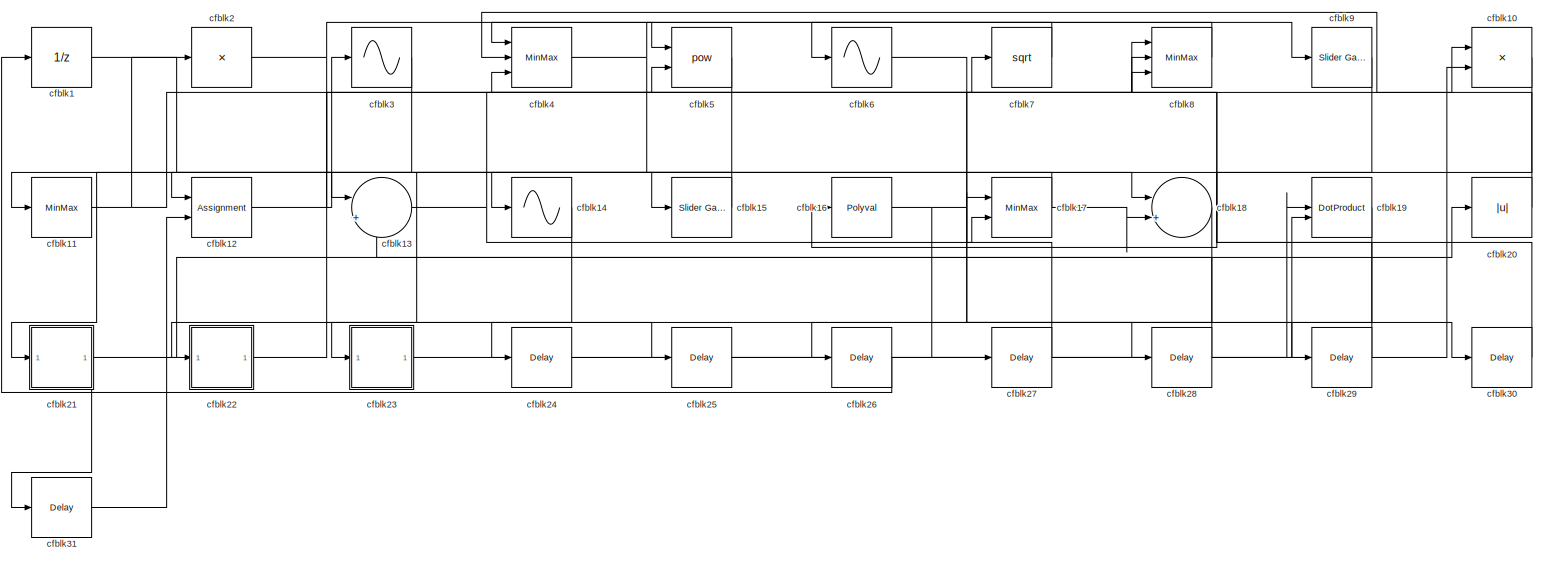
[diagram: root canvas - part 1/1, most of the canvas]
MODEL slx_8d490765f889
KIND model
CONFIG AbsTol = auto
CONFIG EnableMultiTasking = off
CONFIG FixedStep = auto
CONFIG MaxStep = auto
CONFIG MinStep = auto
CONFIG RelTol = 1e-3
CONFIG SampleTimeConstraint = Unconstrained
CONFIG SolverName = FixedStepAuto
CONFIG StartTime = 0.0
CONFIG StopTime = 10.0
BLOCK [UnitDelay] cfblk1
  HasFrameUpgradeWarning = on
BLOCK [Product] cfblk10
  Ports = [2, 1]
BLOCK [MinMax] cfblk11
  Ports = [1, 1]
BLOCK [Assignment] cfblk12
  DiagnosticForDimensions = Warning
  IndexOptions = Index vector (dialog)
  Indices = 1
  OutputSizes = 1
  Ports = [2, 1]
BLOCK [Sum] cfblk13
  Inputs = |++
  Ports = [2, 1]
BLOCK [Sin] cfblk14
  Ports = [1, 1]
  SampleTime = 0
  TimeSource = Use external signal
BLOCK [Reference] cfblk15  REF=simulink/Math
Operations/Slider
Gain
  Ports = [1, 1]
  SourceBlock = simulink/Math\nOperations/Slider\nGain
  SourceProductBaseCode = SL
  SourceType = Slider Gain
BLOCK [Polyval] cfblk16
  Coefs = [ +2.081618890e-019, -1.441693666e-014, +4.719686976e-010, -8.536869453e-006, +1.621573104e-001, -8.087801117e+001 ]
BLOCK [MinMax] cfblk17
  Inputs = 2
  Ports = [2, 1]
BLOCK [Sum] cfblk18
  Inputs = |++
  Ports = [2, 1]
BLOCK [DotProduct] cfblk19
  OutDataTypeStr = Inherit: Inherit via internal rule
BLOCK [Product] cfblk2
  Inputs = *
  Ports = [1, 1]
BLOCK [Abs] cfblk20
  SaturateOnIntegerOverflow = off
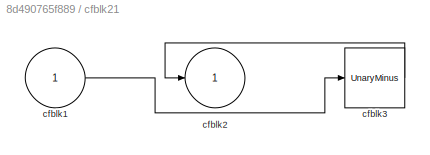
BLOCK [SubSystem] cfblk21
  Ports = [1, 1]
  RequestExecContextInheritance = off
BLOCK [Inport] cfblk21/cfblk1
BLOCK [Outport] cfblk21/cfblk2
BLOCK [UnaryMinus] cfblk21/cfblk3
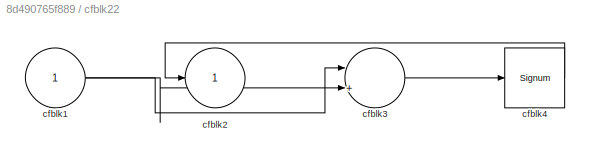
BLOCK [SubSystem] cfblk22
  Ports = [1, 1]
  RequestExecContextInheritance = off
BLOCK [Inport] cfblk22/cfblk1
BLOCK [Outport] cfblk22/cfblk2
BLOCK [Sum] cfblk22/cfblk3
  Inputs = |++
  Ports = [2, 1]
BLOCK [Signum] cfblk22/cfblk4
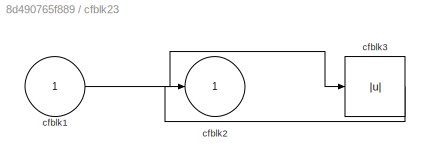
BLOCK [SubSystem] cfblk23
  Ports = [1, 1]
  RequestExecContextInheritance = off
BLOCK [Inport] cfblk23/cfblk1
BLOCK [Outport] cfblk23/cfblk2
BLOCK [Abs] cfblk23/cfblk3
  SaturateOnIntegerOverflow = off
BLOCK [Delay] cfblk24
  InputPortMap = u0
  Ports = [1, 1]
  SampleTime = 1
BLOCK [Delay] cfblk25
  InputPortMap = u0
  Ports = [1, 1]
  SampleTime = 1
BLOCK [Delay] cfblk26
  InputPortMap = u0
  Ports = [1, 1]
  SampleTime = 1
BLOCK [Delay] cfblk27
  InputPortMap = u0
  Ports = [1, 1]
  SampleTime = 1
BLOCK [Delay] cfblk28
  InputPortMap = u0
  Ports = [1, 1]
  SampleTime = 1
BLOCK [Delay] cfblk29
  InputPortMap = u0
  Ports = [1, 1]
  SampleTime = 1
BLOCK [Sin] cfblk3
  Ports = [1, 1]
  SampleTime = 0
  TimeSource = Use external signal
BLOCK [Delay] cfblk30
  InputPortMap = u0
  Ports = [1, 1]
  SampleTime = 1
BLOCK [Delay] cfblk31
  InputPortMap = u0
  Ports = [1, 1]
  SampleTime = 1
BLOCK [MinMax] cfblk4
  Function = max
  Inputs = 3
  Ports = [3, 1]
BLOCK [Math] cfblk5
  Operator = pow
  Ports = [2, 1]
BLOCK [Sin] cfblk6
  Ports = [1, 1]
  SampleTime = 0
  TimeSource = Use external signal
BLOCK [Sqrt] cfblk7
BLOCK [MinMax] cfblk8
  Inputs = 3
  Ports = [3, 1]
BLOCK [Reference] cfblk9  REF=simulink/Math
Operations/Slider
Gain
  Ports = [1, 1]
  SourceBlock = simulink/Math\nOperations/Slider\nGain
  SourceProductBaseCode = SL
  SourceType = Slider Gain
LINE cfblk10:1 -> cfblk14:1
NET cfblk11:1 -> cfblk2:1, cfblk5:2
NET cfblk12:1 -> cfblk3:1, cfblk8:1
NET cfblk13:1 -> cfblk10:1, cfblk17:2
LINE cfblk14:1 -> cfblk24:1
LINE cfblk15:1 -> cfblk12:1
NET cfblk16:1 -> cfblk27:1, cfblk28:1, cfblk8:2
NET cfblk17:1 -> cfblk11:1, cfblk18:2
LINE cfblk18:1 -> cfblk26:1
LINE cfblk19:1 -> cfblk22:1
LINE cfblk1:1 -> cfblk13:1
LINE cfblk20:1 -> cfblk4:2
LINE cfblk21/cfblk1:1 -> cfblk21/cfblk3:1
LINE cfblk21/cfblk3:1 -> cfblk21/cfblk2:1
NET cfblk21:1 -> cfblk20:1, cfblk31:1
NET cfblk22/cfblk1:1 -> cfblk22/cfblk3:1, cfblk22/cfblk3:2
LINE cfblk22/cfblk3:1 -> cfblk22/cfblk4:1
LINE cfblk22/cfblk4:1 -> cfblk22/cfblk2:1
NET cfblk22:1 -> cfblk25:1, cfblk7:1
LINE cfblk23/cfblk1:1 -> cfblk23/cfblk3:1
LINE cfblk23/cfblk3:1 -> cfblk23/cfblk2:1
LINE cfblk23:1 -> cfblk19:2
LINE cfblk24:1 -> cfblk10:2
LINE cfblk25:1 -> cfblk19:1
LINE cfblk26:1 -> cfblk1:1
LINE cfblk27:1 -> cfblk17:1
LINE cfblk28:1 -> cfblk13:2
LINE cfblk29:1 -> cfblk4:3
NET cfblk2:1 -> cfblk15:1, cfblk5:1
LINE cfblk30:1 -> cfblk8:3
LINE cfblk31:1 -> cfblk12:2
LINE cfblk3:1 -> cfblk21:1
NET cfblk4:1 -> cfblk18:1, cfblk9:1
LINE cfblk5:1 -> cfblk23:1
NET cfblk6:1 -> cfblk29:1, cfblk30:1
LINE cfblk7:1 -> cfblk4:1
LINE cfblk8:1 -> cfblk6:1
LINE cfblk9:1 -> cfblk16:1
note: NET lines group one-source signal fan-out (src -> all destinations, sorted); 1:1 wires keep LINE
